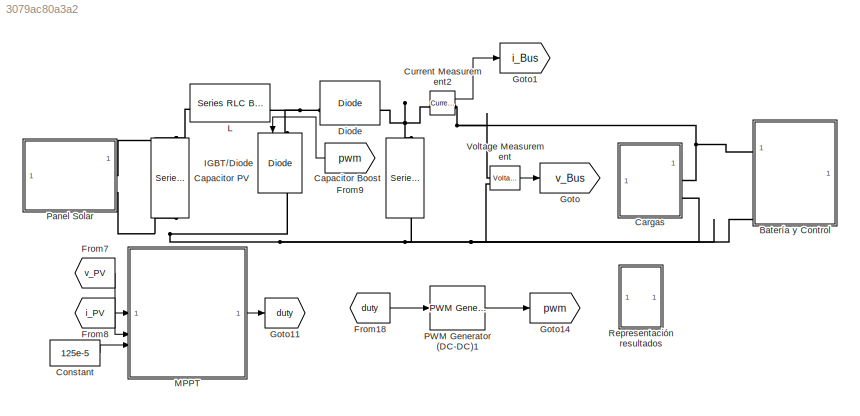
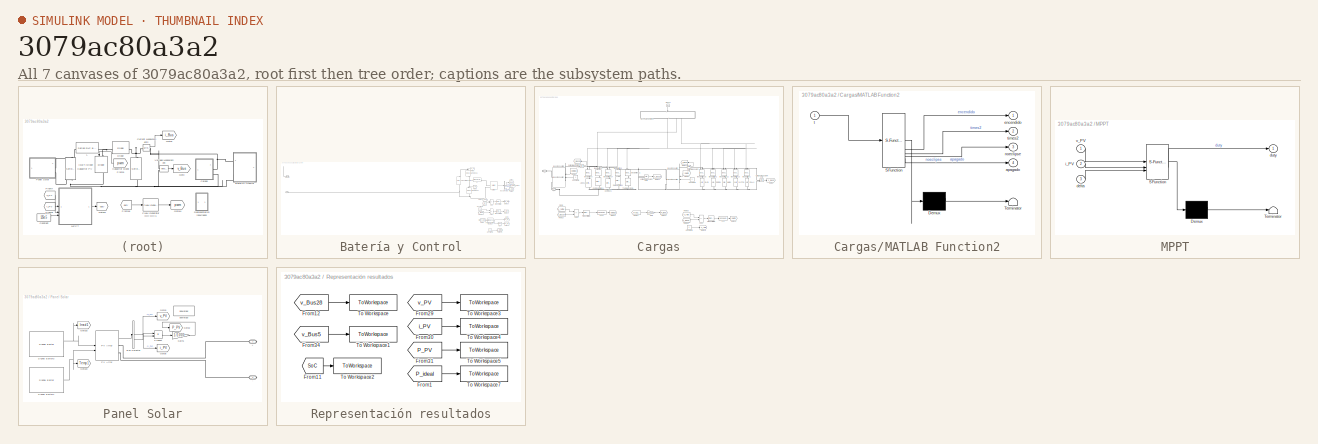
[diagram: thumbnail index - all 7 canvases of the model, root first then tree order]
MODEL slx_3079ac80a3a2
KIND model
CONFIG AbsTol = auto
CONFIG EnableMultiTasking = off
CONFIG FixedStep = 10e-6
CONFIG MaxStep = auto
CONFIG MinStep = auto
CONFIG RelTol = 1e-3
CONFIG SampleTimeConstraint = Unconstrained
CONFIG SolverName = FixedStepDiscrete
CONFIG StartTime = 0.0
CONFIG StopTime = 10
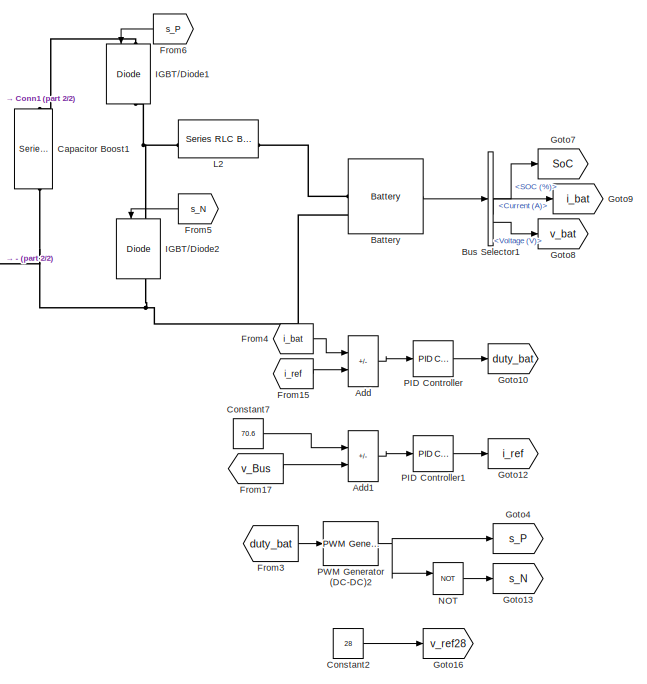
[diagram: Batería y Control - part 1/2, right side, full height]
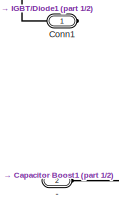
[diagram: Batería y Control - part 2/2, top left region]
BLOCK [SubSystem] Batería y Control
BLOCK [PMIOPort] Batería y Control/-
  Port = 2
  Side = Left
BLOCK [Sum] Batería y Control/Add
  IconShape = rectangular
  Inputs = +-
BLOCK [Sum] Batería y Control/Add1
  IconShape = rectangular
  Inputs = +-
BLOCK [Reference] Batería y Control/Battery  REF=spsBatteryLib/Battery
  LibrarySourceBlock = sps_lib/Sources/Battery
  SourceBlock = spsBatteryLib/Battery
  SourceType = Battery
BLOCK [BusSelector] Batería y Control/Bus Selector1
  OutputSignals = SOC (%),Current (A),Voltage (V)
BLOCK [Reference] Batería y Control/Capacitor Boost1  REF=spsSeriesRLCBranchLib/Series RLC Branch
  LibrarySourceBlock = sps_lib/Passives/Series RLC Branch
  NameLocation = left
  SourceBlock = spsSeriesRLCBranchLib/Series RLC Branch
  SourceType = Series RLC Branch
BLOCK [PMIOPort] Batería y Control/Conn1
  Side = Left
BLOCK [Constant] Batería y Control/Constant2
  Value = 28
BLOCK [Constant] Batería y Control/Constant7
  Value = 70.6
BLOCK [From] Batería y Control/From15
  GotoTag = i_ref
BLOCK [From] Batería y Control/From17
  GotoTag = v_Bus
BLOCK [From] Batería y Control/From3
  GotoTag = duty_bat
BLOCK [From] Batería y Control/From4
  GotoTag = i_bat
BLOCK [From] Batería y Control/From5
  GotoTag = s_N
BLOCK [From] Batería y Control/From6
  GotoTag = s_P
BLOCK [Goto] Batería y Control/Goto10
  GotoTag = duty_bat
BLOCK [Goto] Batería y Control/Goto12
  GotoTag = i_ref
BLOCK [Goto] Batería y Control/Goto13
  GotoTag = s_N
BLOCK [Goto] Batería y Control/Goto16
  GotoTag = v_ref28
BLOCK [Goto] Batería y Control/Goto4
  GotoTag = s_P
BLOCK [Goto] Batería y Control/Goto7
  GotoTag = SoC
BLOCK [Goto] Batería y Control/Goto8
  GotoTag = v_bat
BLOCK [Goto] Batería y Control/Goto9
  GotoTag = i_bat
BLOCK [Reference] Batería y Control/IGBT//Diode1  REF=spsIGBTDiodeLib/IGBT//Diode
  LibrarySourceBlock = sps_lib/Power Electronics/IGBT//Diode
  NameLocation = left
  SourceBlock = spsIGBTDiodeLib/IGBT//Diode
  SourceType = IGBT/Diode
BLOCK [Reference] Batería y Control/IGBT//Diode2  REF=spsIGBTDiodeLib/IGBT//Diode
  LibrarySourceBlock = sps_lib/Power Electronics/IGBT//Diode
  NameLocation = left
  SourceBlock = spsIGBTDiodeLib/IGBT//Diode
  SourceType = IGBT/Diode
BLOCK [Reference] Batería y Control/L2  REF=spsSeriesRLCBranchLib/Series RLC Branch
  LibrarySourceBlock = sps_lib/Passives/Series RLC Branch
  SourceBlock = spsSeriesRLCBranchLib/Series RLC Branch
  SourceType = Series RLC Branch
BLOCK [Logic] Batería y Control/NOT
  AllPortsSameDT = off
  Operator = NOT
  OutDataTypeStr = boolean
BLOCK [Reference] Batería y Control/PID Controller  REF=slpidlib/PID Controller
  LibrarySourceBlock = simulink/Continuous/PID Controller
  SourceBlock = slpidlib/PID Controller
  SourceType = PID 1dof
BLOCK [Reference] Batería y Control/PID Controller1  REF=slpidlib/PID Controller
  LibrarySourceBlock = simulink/Continuous/PID Controller
  SourceBlock = slpidlib/PID Controller
  SourceType = PID 1dof
BLOCK [Reference] Batería y Control/PWM Generator (DC-DC)2  REF=spsPWMGeneratorDCDCLib/PWM Generator
(DC-DC)
  LibrarySourceBlock = sps_lib/Power Electronics/Power Electronics Control/PWM Generator\n(DC-DC)
  SourceBlock = spsPWMGeneratorDCDCLib/PWM Generator\n(DC-DC)
  SourceType = PWM Generator (DC-DC)
BLOCK [Reference] Capacitor Boost  REF=spsSeriesRLCBranchLib/Series RLC Branch
  LibrarySourceBlock = sps_lib/Passives/Series RLC Branch
  NameLocation = left
  SourceBlock = spsSeriesRLCBranchLib/Series RLC Branch
  SourceType = Series RLC Branch
BLOCK [Reference] Capacitor PV  REF=spsSeriesRLCBranchLib/Series RLC Branch
  LibrarySourceBlock = sps_lib/Passives/Series RLC Branch
  NameLocation = left
  SourceBlock = spsSeriesRLCBranchLib/Series RLC Branch
  SourceType = Series RLC Branch
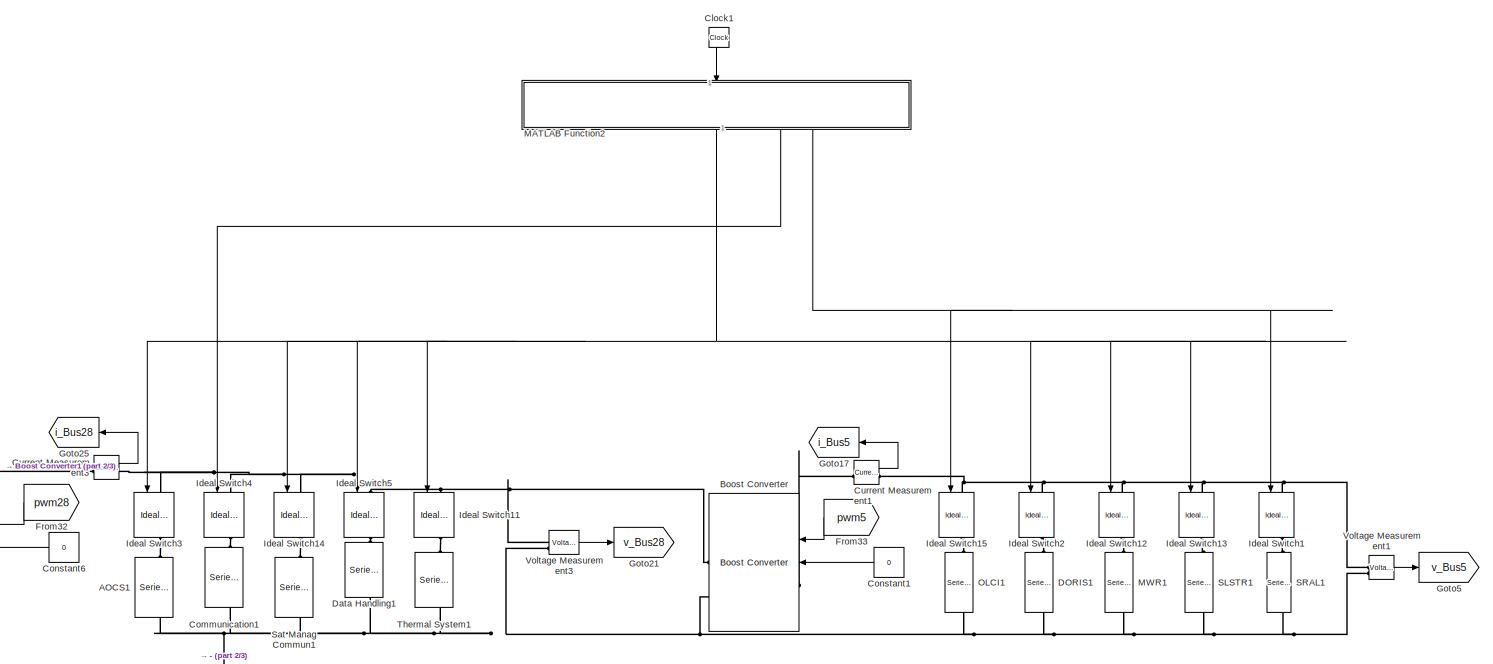
[diagram: Cargas - part 1/3, full width, middle band]
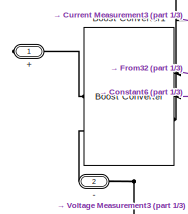
[diagram: Cargas - part 2/3, middle left region]
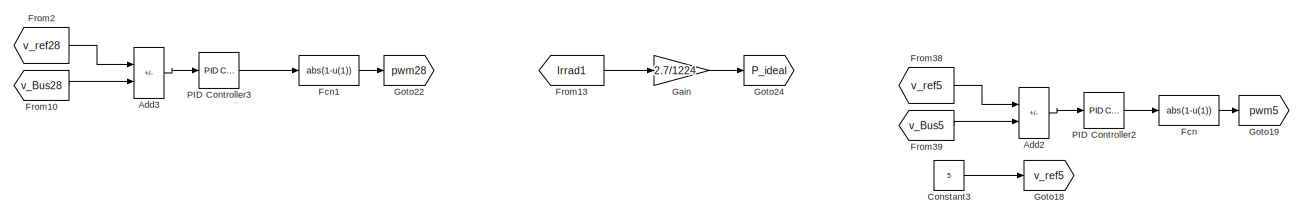
[diagram: Cargas - part 3/3, full width, bottom band]
BLOCK [SubSystem] Cargas
BLOCK [PMIOPort] Cargas/+
  Side = Right
BLOCK [PMIOPort] Cargas/-
  Port = 2
  Side = Right
BLOCK [Reference] Cargas/AOCS1  REF=spsSeriesRLCBranchLib/Series RLC Branch
  LibrarySourceBlock = sps_lib/Passives/Series RLC Branch
  NameLocation = left
  SourceBlock = spsSeriesRLCBranchLib/Series RLC Branch
  SourceType = Series RLC Branch
BLOCK [Sum] Cargas/Add2
  IconShape = rectangular
  Inputs = +-
BLOCK [Sum] Cargas/Add3
  IconShape = rectangular
  Inputs = +-
BLOCK [Reference] Cargas/Boost Converter  REF=spsBoostConverterLib/Boost Converter
  LibrarySourceBlock = sps_lib/Power Electronics/Boost Converter
  SourceBlock = spsBoostConverterLib/Boost Converter
  SourceType = Boost Converter
BLOCK [Reference] Cargas/Boost Converter1  REF=spsBoostConverterLib/Boost Converter
  LibrarySourceBlock = sps_lib/Power Electronics/Boost Converter
  SourceBlock = spsBoostConverterLib/Boost Converter
  SourceType = Boost Converter
BLOCK [Clock] Cargas/Clock1
  NameLocation = left
BLOCK [Reference] Cargas/Communication1  REF=spsSeriesRLCBranchLib/Series RLC Branch
  LibrarySourceBlock = sps_lib/Passives/Series RLC Branch
  SourceBlock = spsSeriesRLCBranchLib/Series RLC Branch
  SourceType = Series RLC Branch
BLOCK [Constant] Cargas/Constant1
  Value = 0
BLOCK [Constant] Cargas/Constant3
  Value = 5
BLOCK [Constant] Cargas/Constant6
  Value = 0
BLOCK [Reference] Cargas/Current Measurement1  REF=spsCurrentMeasurementLib/Current Measurement
  LibrarySourceBlock = sps_lib/Sensors and Measurements/Current Measurement
  SourceBlock = spsCurrentMeasurementLib/Current Measurement
  SourceType = Current Measurement
  UserDataPersistent = on
BLOCK [Reference] Cargas/Current Measurement3  REF=spsCurrentMeasurementLib/Current Measurement
  LibrarySourceBlock = sps_lib/Sensors and Measurements/Current Measurement
  SourceBlock = spsCurrentMeasurementLib/Current Measurement
  SourceType = Current Measurement
  UserDataPersistent = on
BLOCK [Reference] Cargas/DORIS1  REF=spsSeriesRLCBranchLib/Series RLC Branch
  LibrarySourceBlock = sps_lib/Passives/Series RLC Branch
  SourceBlock = spsSeriesRLCBranchLib/Series RLC Branch
  SourceType = Series RLC Branch
BLOCK [Reference] Cargas/Data Handling1  REF=spsSeriesRLCBranchLib/Series RLC Branch
  LibrarySourceBlock = sps_lib/Passives/Series RLC Branch
  SourceBlock = spsSeriesRLCBranchLib/Series RLC Branch
  SourceType = Series RLC Branch
BLOCK [Fcn] Cargas/Fcn
  Expr = abs(1-u(1))
BLOCK [Fcn] Cargas/Fcn1
  Expr = abs(1-u(1))
BLOCK [From] Cargas/From10
  GotoTag = v_Bus28
BLOCK [From] Cargas/From13
  GotoTag = Irrad1
BLOCK [From] Cargas/From2
  GotoTag = v_ref28
BLOCK [From] Cargas/From32
  GotoTag = pwm28
BLOCK [From] Cargas/From33
  GotoTag = pwm5
BLOCK [From] Cargas/From38
  GotoTag = v_ref5
BLOCK [From] Cargas/From39
  GotoTag = v_Bus5
BLOCK [Gain] Cargas/Gain
  Gain = 2.7/1224
BLOCK [Goto] Cargas/Goto17
  GotoTag = i_Bus5
BLOCK [Goto] Cargas/Goto18
  GotoTag = v_ref5
BLOCK [Goto] Cargas/Goto19
  GotoTag = pwm5
BLOCK [Goto] Cargas/Goto21
  GotoTag = v_Bus28
BLOCK [Goto] Cargas/Goto22
  GotoTag = pwm28
BLOCK [Goto] Cargas/Goto24
  GotoTag = P_ideal
BLOCK [Goto] Cargas/Goto25
  GotoTag = i_Bus28
BLOCK [Goto] Cargas/Goto5
  GotoTag = v_Bus5
BLOCK [Reference] Cargas/Ideal Switch1  REF=spsIdealSwitchLib/Ideal Switch
  LibrarySourceBlock = sps_lib/Power Electronics/Ideal Switch
  NameLocation = left
  SourceBlock = spsIdealSwitchLib/Ideal Switch
  SourceType = Ideal Switch
BLOCK [Reference] Cargas/Ideal Switch11  REF=spsIdealSwitchLib/Ideal Switch
  LibrarySourceBlock = sps_lib/Power Electronics/Ideal Switch
  NameLocation = left
  SourceBlock = spsIdealSwitchLib/Ideal Switch
  SourceType = Ideal Switch
BLOCK [Reference] Cargas/Ideal Switch12  REF=spsIdealSwitchLib/Ideal Switch
  LibrarySourceBlock = sps_lib/Power Electronics/Ideal Switch
  NameLocation = left
  SourceBlock = spsIdealSwitchLib/Ideal Switch
  SourceType = Ideal Switch
BLOCK [Reference] Cargas/Ideal Switch13  REF=spsIdealSwitchLib/Ideal Switch
  LibrarySourceBlock = sps_lib/Power Electronics/Ideal Switch
  NameLocation = left
  SourceBlock = spsIdealSwitchLib/Ideal Switch
  SourceType = Ideal Switch
BLOCK [Reference] Cargas/Ideal Switch14  REF=spsIdealSwitchLib/Ideal Switch
  LibrarySourceBlock = sps_lib/Power Electronics/Ideal Switch
  NameLocation = left
  SourceBlock = spsIdealSwitchLib/Ideal Switch
  SourceType = Ideal Switch
BLOCK [Reference] Cargas/Ideal Switch15  REF=spsIdealSwitchLib/Ideal Switch
  LibrarySourceBlock = sps_lib/Power Electronics/Ideal Switch
  NameLocation = left
  SourceBlock = spsIdealSwitchLib/Ideal Switch
  SourceType = Ideal Switch
BLOCK [Reference] Cargas/Ideal Switch2  REF=spsIdealSwitchLib/Ideal Switch
  LibrarySourceBlock = sps_lib/Power Electronics/Ideal Switch
  NameLocation = left
  SourceBlock = spsIdealSwitchLib/Ideal Switch
  SourceType = Ideal Switch
BLOCK [Reference] Cargas/Ideal Switch3  REF=spsIdealSwitchLib/Ideal Switch
  LibrarySourceBlock = sps_lib/Power Electronics/Ideal Switch
  NameLocation = left
  SourceBlock = spsIdealSwitchLib/Ideal Switch
  SourceType = Ideal Switch
BLOCK [Reference] Cargas/Ideal Switch4  REF=spsIdealSwitchLib/Ideal Switch
  LibrarySourceBlock = sps_lib/Power Electronics/Ideal Switch
  NameLocation = left
  SourceBlock = spsIdealSwitchLib/Ideal Switch
  SourceType = Ideal Switch
BLOCK [Reference] Cargas/Ideal Switch5  REF=spsIdealSwitchLib/Ideal Switch
  LibrarySourceBlock = sps_lib/Power Electronics/Ideal Switch
  NameLocation = left
  SourceBlock = spsIdealSwitchLib/Ideal Switch
  SourceType = Ideal Switch
BLOCK [SubSystem] Cargas/MATLAB Function2
  ErrorFcn = Stateflow.Translate.translate
  LibrarySourceBlock = simulink/User-Defined\nFunctions/MATLAB Function
  NameLocation = left
  PermitHierarchicalResolution = ExplicitOnly
  SFBlockType = MATLAB Function
  TreatAsAtomicUnit = on
BLOCK [Demux] Cargas/MATLAB Function2/ Demux 
  Outputs = 1
BLOCK [S-Function] Cargas/MATLAB Function2/ SFunction 
  EnableBusSupport = on
  FunctionName = sf_sfun
  PortCounts = [1 5]
  SFcnIsStateOwnerBlock = off
  SFunctionDeploymentMode = off
  Tag = Stateflow S-Function 1
BLOCK [Terminator] Cargas/MATLAB Function2/ Terminator 
BLOCK [Outport] Cargas/MATLAB Function2/apagado
  Port = 4
BLOCK [Outport] Cargas/MATLAB Function2/encendido
BLOCK [Outport] Cargas/MATLAB Function2/noeclipse
  Port = 3
BLOCK [Inport] Cargas/MATLAB Function2/t
BLOCK [Outport] Cargas/MATLAB Function2/times2
  Port = 2
BLOCK [Reference] Cargas/MWR1  REF=spsSeriesRLCBranchLib/Series RLC Branch
  LibrarySourceBlock = sps_lib/Passives/Series RLC Branch
  SourceBlock = spsSeriesRLCBranchLib/Series RLC Branch
  SourceType = Series RLC Branch
BLOCK [Reference] Cargas/OLCI1  REF=spsSeriesRLCBranchLib/Series RLC Branch
  LibrarySourceBlock = sps_lib/Passives/Series RLC Branch
  SourceBlock = spsSeriesRLCBranchLib/Series RLC Branch
  SourceType = Series RLC Branch
BLOCK [Reference] Cargas/PID Controller2  REF=slpidlib/PID Controller
  LibrarySourceBlock = simulink/Continuous/PID Controller
  SourceBlock = slpidlib/PID Controller
  SourceType = PID 1dof
BLOCK [Reference] Cargas/PID Controller3  REF=slpidlib/PID Controller
  LibrarySourceBlock = simulink/Continuous/PID Controller
  SourceBlock = slpidlib/PID Controller
  SourceType = PID 1dof
BLOCK [Reference] Cargas/SLSTR1  REF=spsSeriesRLCBranchLib/Series RLC Branch
  LibrarySourceBlock = sps_lib/Passives/Series RLC Branch
  SourceBlock = spsSeriesRLCBranchLib/Series RLC Branch
  SourceType = Series RLC Branch
BLOCK [Reference] Cargas/SRAL1  REF=spsSeriesRLCBranchLib/Series RLC Branch
  LibrarySourceBlock = sps_lib/Passives/Series RLC Branch
  SourceBlock = spsSeriesRLCBranchLib/Series RLC Branch
  SourceType = Series RLC Branch
BLOCK [Reference] Cargas/Sat Manag Commun1  REF=spsSeriesRLCBranchLib/Series RLC Branch
  LibrarySourceBlock = sps_lib/Passives/Series RLC Branch
  SourceBlock = spsSeriesRLCBranchLib/Series RLC Branch
  SourceType = Series RLC Branch
BLOCK [Reference] Cargas/Thermal System1  REF=spsSeriesRLCBranchLib/Series RLC Branch
  LibrarySourceBlock = sps_lib/Passives/Series RLC Branch
  SourceBlock = spsSeriesRLCBranchLib/Series RLC Branch
  SourceType = Series RLC Branch
BLOCK [Reference] Cargas/Voltage Measurement1  REF=spsVoltageMeasurementLib/Voltage Measurement
  LibrarySourceBlock = sps_lib/Sensors and Measurements/Voltage Measurement
  SourceBlock = spsVoltageMeasurementLib/Voltage Measurement
  SourceType = Voltage Measurement
  UserDataPersistent = on
BLOCK [Reference] Cargas/Voltage Measurement3  REF=spsVoltageMeasurementLib/Voltage Measurement
  LibrarySourceBlock = sps_lib/Sensors and Measurements/Voltage Measurement
  SourceBlock = spsVoltageMeasurementLib/Voltage Measurement
  SourceType = Voltage Measurement
  UserDataPersistent = on
BLOCK [Constant] Constant
  Value = 125e-5
BLOCK [Reference] Current Measurement2  REF=spsCurrentMeasurementLib/Current Measurement
  LibrarySourceBlock = sps_lib/Sensors and Measurements/Current Measurement
  SourceBlock = spsCurrentMeasurementLib/Current Measurement
  SourceType = Current Measurement
  UserDataPersistent = on
BLOCK [Reference] Diode  REF=spsDiodeLib/Diode
  LibrarySourceBlock = sps_lib/Power Electronics/Diode
  SourceBlock = spsDiodeLib/Diode
  SourceType = Diode
BLOCK [From] From18
  GotoTag = duty
BLOCK [From] From7
  GotoTag = v_PV
BLOCK [From] From8
  GotoTag = i_PV
BLOCK [From] From9
  GotoTag = pwm
BLOCK [Goto] Goto
  GotoTag = v_Bus
BLOCK [Goto] Goto1
  GotoTag = i_Bus
BLOCK [Goto] Goto11
  GotoTag = duty
BLOCK [Goto] Goto14
  GotoTag = pwm
BLOCK [Reference] IGBT//Diode  REF=spsIGBTDiodeLib/IGBT//Diode
  LibrarySourceBlock = sps_lib/Power Electronics/IGBT//Diode
  NameLocation = left
  SourceBlock = spsIGBTDiodeLib/IGBT//Diode
  SourceType = IGBT/Diode
BLOCK [Reference] L  REF=spsSeriesRLCBranchLib/Series RLC Branch
  LibrarySourceBlock = sps_lib/Passives/Series RLC Branch
  SourceBlock = spsSeriesRLCBranchLib/Series RLC Branch
  SourceType = Series RLC Branch
BLOCK [SubSystem] MPPT
  ErrorFcn = Stateflow.Translate.translate
  PermitHierarchicalResolution = ExplicitOnly
  SFBlockType = MATLAB Function
  TreatAsAtomicUnit = on
BLOCK [Demux] MPPT/ Demux 
  Outputs = 1
BLOCK [S-Function] MPPT/ SFunction 
  EnableBusSupport = on
  FunctionName = sf_sfun
  PortCounts = [3 2]
  SFcnIsStateOwnerBlock = off
  SFunctionDeploymentMode = off
  Tag = Stateflow S-Function 2
BLOCK [Terminator] MPPT/ Terminator 
BLOCK [Inport] MPPT/delta
  Port = 3
BLOCK [Outport] MPPT/duty
BLOCK [Inport] MPPT/i_PV
  Port = 2
BLOCK [Inport] MPPT/v_PV
BLOCK [Reference] PWM Generator (DC-DC)1  REF=spsPWMGeneratorDCDCLib/PWM Generator
(DC-DC)
  LibrarySourceBlock = sps_lib/Power Electronics/Power Electronics Control/PWM Generator\n(DC-DC)
  SourceBlock = spsPWMGeneratorDCDCLib/PWM Generator\n(DC-DC)
  SourceType = PWM Generator (DC-DC)
BLOCK [SubSystem] Panel Solar
BLOCK [PMIOPort] Panel Solar/+
  Side = Right
BLOCK [PMIOPort] Panel Solar/-
  Port = 2
  Side = Right
BLOCK [BusSelector] Panel Solar/Bus Selector
  OutputSignals = V_PV,I_PV
BLOCK [Gain] Panel Solar/Gain1
  Gain = 1/1000
BLOCK [Goto] Panel Solar/Goto15
  GotoTag = Irrad1
BLOCK [Goto] Panel Solar/Goto2
  GotoTag = P_PV
BLOCK [Goto] Panel Solar/Goto20
  GotoTag = Temp1
BLOCK [Goto] Panel Solar/Goto3
  GotoTag = v_PV
BLOCK [Goto] Panel Solar/Goto6
  GotoTag = i_PV
BLOCK [Reference] Panel Solar/PV Array  REF=spsPVArrayLib/PV Array
  LibrarySourceBlock = sps_lib/Sources/PV Array
  SourceBlock = spsPVArrayLib/PV Array
  SourceType = PV array
BLOCK [Product] Panel Solar/Product
BLOCK [Reference] Panel Solar/Signal Editor1  REF=SignalEditorBlockLib/Signal Editor
  LibrarySourceBlock = simulink/Sources/Signal Editor
  SourceBlock = SignalEditorBlockLib/Signal Editor
  SourceType = SignalEditor
  UserDataPersistent = on
BLOCK [Reference] Panel Solar/Signal Editor3  REF=SignalEditorBlockLib/Signal Editor
  LibrarySourceBlock = simulink/Sources/Signal Editor
  SourceBlock = SignalEditorBlockLib/Signal Editor
  SourceType = SignalEditor
  UserDataPersistent = on
BLOCK [Reference] Panel Solar/powergui  REF=spspowerguiLib/powergui
  Priority = 1
  SourceBlock = spspowerguiLib/powergui
  SourceType = PSB option menu block
BLOCK [SubSystem] Representación resultados
BLOCK [From] Representación resultados/From1
  GotoTag = P_ideal
BLOCK [From] Representación resultados/From11
  GotoTag = SoC
BLOCK [From] Representación resultados/From12
  GotoTag = v_Bus28
BLOCK [From] Representación resultados/From29
  GotoTag = v_PV
BLOCK [From] Representación resultados/From30
  GotoTag = i_PV
BLOCK [From] Representación resultados/From31
  GotoTag = P_PV
BLOCK [From] Representación resultados/From34
  GotoTag = v_Bus5
BLOCK [ToWorkspace] Representación resultados/To Workspace
  Decimation = 10000
  FixptAsFi = on
  MaxDataPoints = inf
  SampleTime = -1
  SaveFormat = Structure With Time
  VariableName = v_Bus28
BLOCK [ToWorkspace] Representación resultados/To Workspace1
  Decimation = 10000
  FixptAsFi = on
  MaxDataPoints = inf
  SampleTime = -1
  SaveFormat = Structure With Time
  VariableName = v_Bus5
BLOCK [ToWorkspace] Representación resultados/To Workspace2
  Decimation = 10000
  FixptAsFi = on
  MaxDataPoints = inf
  SampleTime = -1
  SaveFormat = Structure With Time
  VariableName = SoC
BLOCK [ToWorkspace] Representación resultados/To Workspace3
  Decimation = 10000
  FixptAsFi = on
  MaxDataPoints = inf
  SampleTime = -1
  SaveFormat = Structure With Time
  VariableName = v_PV
BLOCK [ToWorkspace] Representación resultados/To Workspace4
  Decimation = 10000
  FixptAsFi = on
  MaxDataPoints = inf
  SampleTime = -1
  SaveFormat = Structure With Time
  VariableName = i_PV
BLOCK [ToWorkspace] Representación resultados/To Workspace5
  Decimation = 10000
  FixptAsFi = on
  MaxDataPoints = inf
  SampleTime = -1
  SaveFormat = Structure With Time
  VariableName = P_PV
BLOCK [ToWorkspace] Representación resultados/To Workspace7
  Decimation = 10000
  FixptAsFi = on
  MaxDataPoints = inf
  SampleTime = -1
  SaveFormat = Structure With Time
  VariableName = P_ideal
BLOCK [Reference] Voltage Measurement  REF=spsVoltageMeasurementLib/Voltage Measurement
  LibrarySourceBlock = sps_lib/Sensors and Measurements/Voltage Measurement
  SourceBlock = spsVoltageMeasurementLib/Voltage Measurement
  SourceType = Voltage Measurement
  UserDataPersistent = on
LINE Batería y Control/Add1:1 -> Batería y Control/PID Controller1:1
LINE Batería y Control/Add:1 -> Batería y Control/PID Controller:1
LINE Batería y Control/Battery:1 -> Batería y Control/Bus Selector1:1
LINE Batería y Control/Bus Selector1:1 -> Batería y Control/Goto7:1
LINE Batería y Control/Bus Selector1:2 -> Batería y Control/Goto9:1
LINE Batería y Control/Bus Selector1:3 -> Batería y Control/Goto8:1
LINE Batería y Control/Constant2:1 -> Batería y Control/Goto16:1
LINE Batería y Control/Constant7:1 -> Batería y Control/Add1:1
LINE Batería y Control/From15:1 -> Batería y Control/Add:2
LINE Batería y Control/From17:1 -> Batería y Control/Add1:2
LINE Batería y Control/From3:1 -> Batería y Control/PWM Generator (DC-DC)2:1
LINE Batería y Control/From4:1 -> Batería y Control/Add:1
LINE Batería y Control/From5:1 -> Batería y Control/IGBT//Diode2:1
LINE Batería y Control/From6:1 -> Batería y Control/IGBT//Diode1:1
LINE Batería y Control/NOT:1 -> Batería y Control/Goto13:1
LINE Batería y Control/PID Controller1:1 -> Batería y Control/Goto12:1
LINE Batería y Control/PID Controller:1 -> Batería y Control/Goto10:1
NET Batería y Control/PWM Generator (DC-DC)2:1 -> Batería y Control/Goto4:1, Batería y Control/NOT:1
LINE Cargas/Add2:1 -> Cargas/PID Controller2:1
LINE Cargas/Add3:1 -> Cargas/PID Controller3:1
LINE Cargas/Clock1:1 -> Cargas/MATLAB Function2:1
LINE Cargas/Constant1:1 -> Cargas/Boost Converter:2
LINE Cargas/Constant3:1 -> Cargas/Goto18:1
LINE Cargas/Constant6:1 -> Cargas/Boost Converter1:2
LINE Cargas/Current Measurement1:1 -> Cargas/Goto17:1
LINE Cargas/Current Measurement3:1 -> Cargas/Goto25:1
LINE Cargas/Fcn1:1 -> Cargas/Goto22:1
LINE Cargas/Fcn:1 -> Cargas/Goto19:1
LINE Cargas/From10:1 -> Cargas/Add3:2
LINE Cargas/From13:1 -> Cargas/Gain:1
LINE Cargas/From2:1 -> Cargas/Add3:1
LINE Cargas/From32:1 -> Cargas/Boost Converter1:1
LINE Cargas/From33:1 -> Cargas/Boost Converter:1
LINE Cargas/From38:1 -> Cargas/Add2:1
LINE Cargas/From39:1 -> Cargas/Add2:2
LINE Cargas/Gain:1 -> Cargas/Goto24:1
NET Cargas/MATLAB Function2:1 -> Cargas/Ideal Switch11:1, Cargas/Ideal Switch12:1, Cargas/Ideal Switch13:1, Cargas/Ideal Switch14:1, Cargas/Ideal Switch2:1, Cargas/Ideal Switch3:1, Cargas/Ideal Switch5:1
LINE Cargas/MATLAB Function2:2 -> Cargas/Ideal Switch4:1
NET Cargas/MATLAB Function2:3 -> Cargas/Ideal Switch15:1, Cargas/Ideal Switch1:1
LINE Cargas/PID Controller2:1 -> Cargas/Fcn:1
LINE Cargas/PID Controller3:1 -> Cargas/Fcn1:1
LINE Cargas/Voltage Measurement1:1 -> Cargas/Goto5:1
LINE Cargas/Voltage Measurement3:1 -> Cargas/Goto21:1
LINE Constant:1 -> MPPT:3
LINE Current Measurement2:1 -> Goto1:1
LINE From18:1 -> PWM Generator (DC-DC)1:1
LINE From7:1 -> MPPT:1
LINE From8:1 -> MPPT:2
LINE From9:1 -> IGBT//Diode:1
LINE MPPT:1 -> Goto11:1
LINE PWM Generator (DC-DC)1:1 -> Goto14:1
NET Panel Solar/Bus Selector:1 -> Panel Solar/Goto3:1, Panel Solar/Product:1
NET Panel Solar/Bus Selector:2 -> Panel Solar/Goto6:1, Panel Solar/Product:2
LINE Panel Solar/Gain1:1 -> Panel Solar/Goto2:1
LINE Panel Solar/PV Array:1 -> Panel Solar/Bus Selector:1
LINE Panel Solar/Product:1 -> Panel Solar/Gain1:1
NET Panel Solar/Signal Editor1:1 -> Panel Solar/Goto20:1, Panel Solar/PV Array:2
NET Panel Solar/Signal Editor3:2 -> Panel Solar/Goto15:1, Panel Solar/PV Array:1
LINE Representación resultados/From11:1 -> Representación resultados/To Workspace2:1
LINE Representación resultados/From12:1 -> Representación resultados/To Workspace:1
LINE Representación resultados/From1:1 -> Representación resultados/To Workspace7:1
LINE Representación resultados/From29:1 -> Representación resultados/To Workspace3:1
LINE Representación resultados/From30:1 -> Representación resultados/To Workspace4:1
LINE Representación resultados/From31:1 -> Representación resultados/To Workspace5:1
LINE Representación resultados/From34:1 -> Representación resultados/To Workspace1:1
LINE Voltage Measurement:1 -> Goto:1
PNET net1: Batería y Control/-:RConn1 -- Batería y Control/Battery:LConn2 -- Batería y Control/Capacitor Boost1:RConn1 -- Batería y Control/IGBT//Diode2:RConn1
PLINE Batería y Control/Battery:LConn1 -- Batería y Control/L2:RConn1
PNET net2: Batería y Control/Capacitor Boost1:LConn1 -- Batería y Control/Conn1:RConn1 -- Batería y Control/IGBT//Diode1:LConn1
PNET net3: Batería y Control/IGBT//Diode1:RConn1 -- Batería y Control/IGBT//Diode2:LConn1 -- Batería y Control/L2:LConn1
PNET net4: Batería y Control:LConn1 -- Cargas:RConn1 -- Current Measurement2:RConn1 -- Voltage Measurement:LConn1
PNET net5: Batería y Control:LConn2 -- Capacitor Boost:RConn1 -- Capacitor PV:RConn1 -- Cargas:RConn2 -- IGBT//Diode:RConn1 -- Panel Solar:RConn2 -- Voltage Measurement:LConn2
PNET net6: Capacitor Boost:LConn1 -- Current Measurement2:LConn1 -- Diode:RConn1
PNET net7: Capacitor PV:LConn1 -- L:LConn1 -- Panel Solar:RConn1
PLINE Cargas/+:RConn1 -- Cargas/Boost Converter1:RConn1
PNET net8: Cargas/-:RConn1 -- Cargas/AOCS1:RConn1 -- Cargas/Boost Converter1:RConn2 -- Cargas/Boost Converter:RConn2 -- Cargas/Communication1:RConn1 -- Cargas/DORIS1:RConn1 -- Cargas/Data Handling1:RConn1 -- Cargas/MWR1:RConn1 -- Cargas/OLCI1:RConn1 -- Cargas/SLSTR1:RConn1 -- Cargas/SRAL1:RConn1 -- Cargas/Sat Manag Commun1:RConn1 -- Cargas/Thermal System1:RConn1 -- Cargas/Voltage Measurement1:LConn2 -- Cargas/Voltage Measurement3:LConn2
PLINE Cargas/AOCS1:LConn1 -- Cargas/Ideal Switch3:RConn1
PLINE Cargas/Boost Converter1:LConn1 -- Cargas/Current Measurement3:LConn1
PLINE Cargas/Boost Converter:LConn1 -- Cargas/Current Measurement1:LConn1
PNET net9: Cargas/Boost Converter:RConn1 -- Cargas/Current Measurement3:RConn1 -- Cargas/Ideal Switch11:LConn1 -- Cargas/Ideal Switch14:LConn1 -- Cargas/Ideal Switch3:LConn1 -- Cargas/Ideal Switch4:LConn1 -- Cargas/Ideal Switch5:LConn1 -- Cargas/Voltage Measurement3:LConn1
PLINE Cargas/Communication1:LConn1 -- Cargas/Ideal Switch4:RConn1
PNET net10: Cargas/Current Measurement1:RConn1 -- Cargas/Ideal Switch12:LConn1 -- Cargas/Ideal Switch13:LConn1 -- Cargas/Ideal Switch15:LConn1 -- Cargas/Ideal Switch1:LConn1 -- Cargas/Ideal Switch2:LConn1 -- Cargas/Voltage Measurement1:LConn1
PLINE Cargas/DORIS1:LConn1 -- Cargas/Ideal Switch2:RConn1
PLINE Cargas/Data Handling1:LConn1 -- Cargas/Ideal Switch5:RConn1
PLINE Cargas/Ideal Switch11:RConn1 -- Cargas/Thermal System1:LConn1
PLINE Cargas/Ideal Switch12:RConn1 -- Cargas/MWR1:LConn1
PLINE Cargas/Ideal Switch13:RConn1 -- Cargas/SLSTR1:LConn1
PLINE Cargas/Ideal Switch14:RConn1 -- Cargas/Sat Manag Commun1:LConn1
PLINE Cargas/Ideal Switch15:RConn1 -- Cargas/OLCI1:LConn1
PLINE Cargas/Ideal Switch1:RConn1 -- Cargas/SRAL1:LConn1
PNET net11: Diode:LConn1 -- IGBT//Diode:LConn1 -- L:RConn1
PLINE Panel Solar/+:RConn1 -- Panel Solar/PV Array:RConn1
PLINE Panel Solar/-:RConn1 -- Panel Solar/PV Array:RConn2
note: NET lines group one-source signal fan-out (src -> all destinations, sorted); 1:1 wires keep LINE; PNET lines group multi-terminal physical nets as a canonical sorted terminal list (undirected conserving connections); 2-terminal nets keep the pairwise PLINE form
CHART Cargas/MATLAB Function2 states=1 transitions=1
  STATE_LABEL 'eML_blk_kernel()'
  STATE_LABEL 'SCRIPT:\nfunction [encendido, times2, noeclipse, apagado] = controlSignals(t)\n    % Inicializa las señales en 0\n    encendido = 1;\n    times2 = 0;\n    noeclipse = 1;\n    apagado = 0;\n    \n    \n    % Activa times2 entre 10 y 11 segundos\n    if (t >= 500 && t < 530)\n        times2 = 1;\n    end\n\n    if (t >= 5500 && t < 5530)\n        times2 = 1;\n    end\n    % Activa la señal3 entre 10 y 11 segundos\n  ...<+63ch>'
CHART MPPT states=1 transitions=1
  STATE_LABEL 'eML_blk_kernel()'
  STATE_LABEL 'SCRIPT:\nfunction duty = MPPT_algorithm(v_PV,i_PV,delta)\n% I used the MPPT algorithm in the MATLAB examples\n% I only modify somethings.\nduty_init = 0.3;\n% min and max value are used to limit duty between\n% 0 and 0.85\nduty_min=0;\nduty_max=0.85;\n\npersistent Vold Pold duty_old;\n% persistent variable type can be store the data\n% we need the old data by obtain difference\n% between old and new value\nif i...<+891ch>'
CHART  states=0 transitions=0
CHART  states=0 transitions=0
